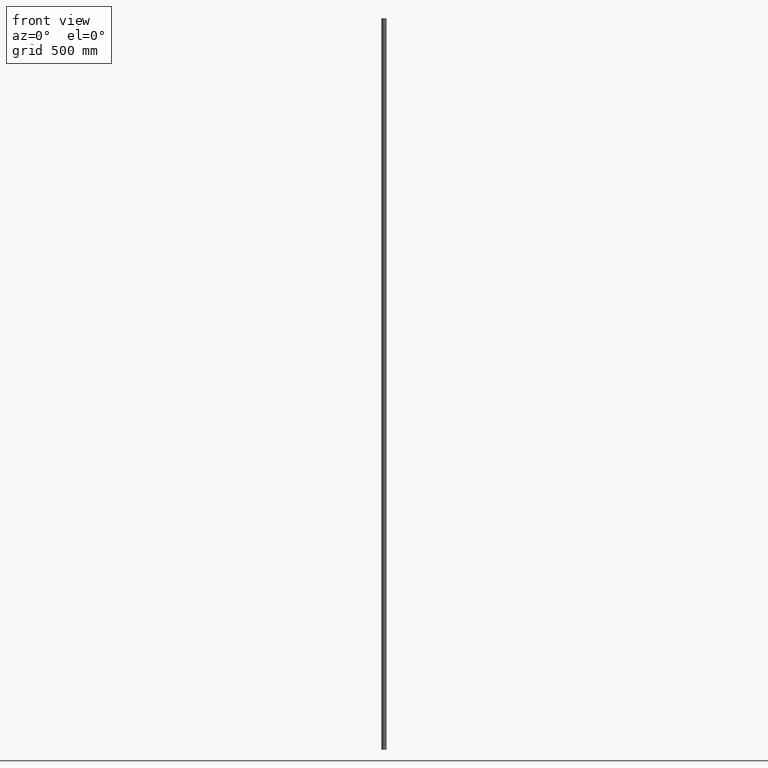
[diagram: clean part render]
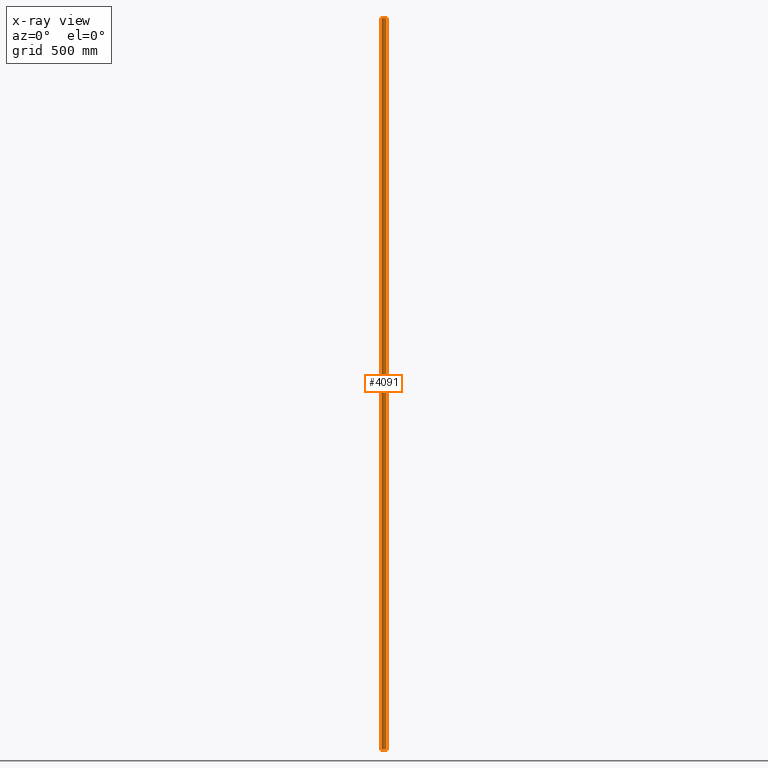
[diagram: x-ray — body ghosted, one internal face saturated and labeled with its STEP entity id]
A machine part, front view, then the same camera in x-ray: the body is ghosted and one INTERNAL B-rep face — a face not visible from any outside direction — is saturated and labeled: STEP entity #4091.
In plain terms, the highlighted cylindrical surface (bore or boss wall) has radius 10.65 mm, axis along (-0, -0, -1).
Its self-contained STEP definition (entity closure, byte-faithful):
#134 = EDGE_LOOP ( 'NONE', ( #12088 ) ) ;
#268 = AXIS2_PLACEMENT_3D ( 'NONE', #12284, #6885, #12438 ) ;
#746 = CYLINDRICAL_SURFACE ( 'NONE', #12658, 10.65000000000000036 ) ;
#808 = CIRCLE ( 'NONE', #13652, 10.65000000000000036 ) ;
#1630 = DIRECTION ( 'NONE',  ( 0.000000000000000000, 0.000000000000000000, 1.000000000000000000 ) ) ;
#2158 = FACE_OUTER_BOUND ( 'NONE', #4054, .T. ) ;
#2893 = CARTESIAN_POINT ( 'NONE',  ( 10.65000000000000036, 0.000000000000000000, -1500.000000000000000 ) ) ;
#3394 = VERTEX_POINT ( 'NONE', #2893 ) ;
#3672 = DIRECTION ( 'NONE',  ( -1.000000000000000000, 0.000000000000000000, 0.000000000000000000 ) ) ;
#3740 = DIRECTION ( 'NONE',  ( 1.000000000000000000, 0.000000000000000000, 0.000000000000000000 ) ) ;
#4054 = EDGE_LOOP ( 'NONE', ( #8110 ) ) ;
#4091 = ADVANCED_FACE ( 'NONE', ( #2158, #12027 ), #746, .T. ) ;
#5446 = VERTEX_POINT ( 'NONE', #6095 ) ;
#6095 = CARTESIAN_POINT ( 'NONE',  ( 10.65000000000000036, 0.000000000000000000, 1500.000000000000000 ) ) ;
#6885 = DIRECTION ( 'NONE',  ( 0.000000000000000000, 0.000000000000000000, 1.000000000000000000 ) ) ;
#8110 = ORIENTED_EDGE ( 'NONE', *, *, #10873, .F. ) ;
#9231 = CARTESIAN_POINT ( 'NONE',  ( 0.000000000000000000, 0.000000000000000000, 1500.000000000000000 ) ) ;
#10873 = EDGE_CURVE ( 'NONE', #5446, #5446, #12608, .T. ) ;
#10975 = EDGE_CURVE ( 'NONE', #3394, #3394, #808, .T. ) ;
#12027 = FACE_OUTER_BOUND ( 'NONE', #134, .T. ) ;
#12088 = ORIENTED_EDGE ( 'NONE', *, *, #10975, .T. ) ;
#12284 = CARTESIAN_POINT ( 'NONE',  ( 0.000000000000000000, 0.000000000000000000, 1500.000000000000000 ) ) ;
#12438 = DIRECTION ( 'NONE',  ( 1.000000000000000000, 0.000000000000000000, 0.000000000000000000 ) ) ;
#12608 = CIRCLE ( 'NONE', #268, 10.65000000000000036 ) ;
#12658 = AXIS2_PLACEMENT_3D ( 'NONE', #9231, #13630, #3672 ) ;
#13630 = DIRECTION ( 'NONE',  ( -0.000000000000000000, -0.000000000000000000, -1.000000000000000000 ) ) ;
#13652 = AXIS2_PLACEMENT_3D ( 'NONE', #13798, #1630, #3740 ) ;
#13798 = CARTESIAN_POINT ( 'NONE',  ( 0.000000000000000000, 0.000000000000000000, -1500.000000000000000 ) ) ;